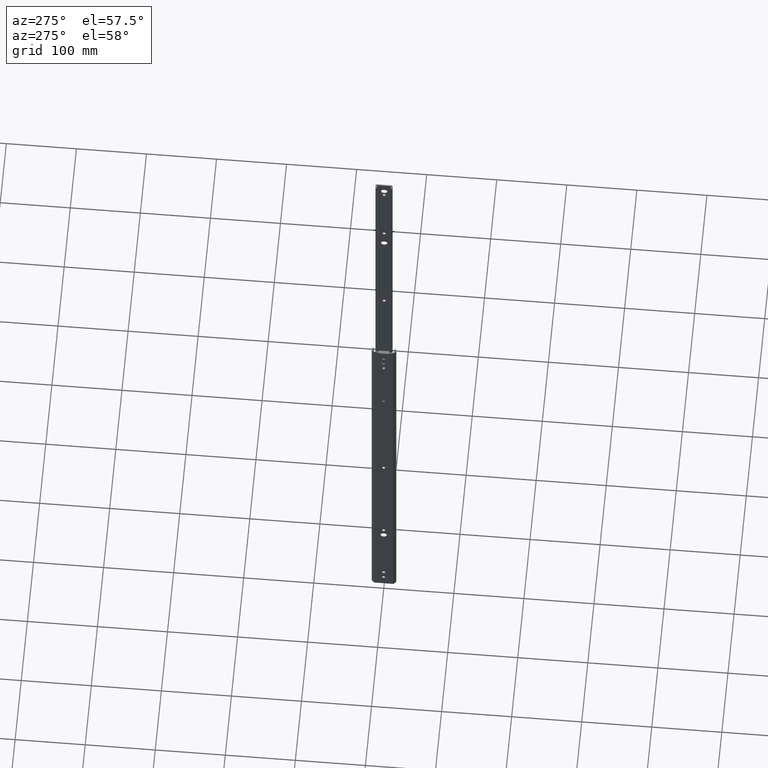
[diagram: clean part render]
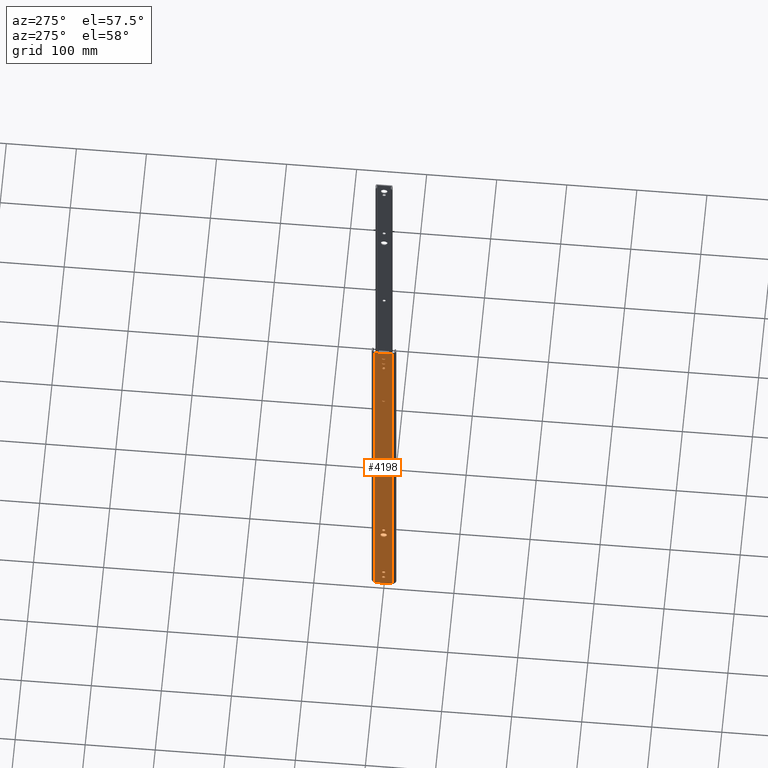
[diagram: same view with one face highlighted and labeled with its STEP entity id]
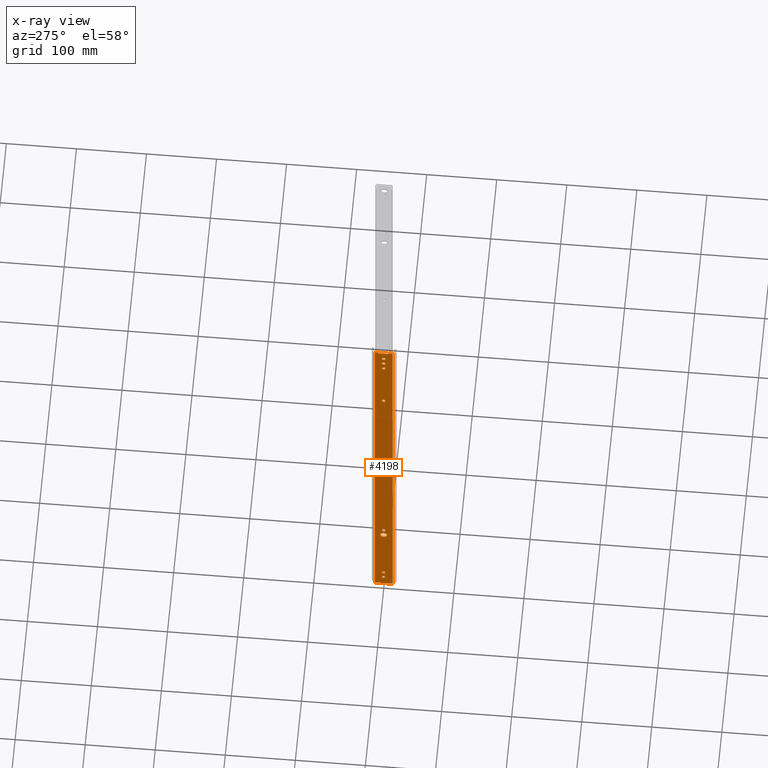
[diagram: x-ray of the same camera — body ghosted, the highlighted face saturated]
A machine part, auxiliary view. The second image highlights one B-rep face of the part: STEP entity #4198.
The next image is the same camera in x-ray: the body ghosted, the highlighted face saturated — about 0% of this face is hidden behind the body in this view.
In plain terms, the highlighted planar face has unit normal (-1, 0, 0).
Its self-contained STEP definition (entity closure, byte-faithful):
#8 = VERTEX_POINT ( 'NONE', #3231 ) ;
#23 = ORIENTED_EDGE ( 'NONE', *, *, #4954, .F. ) ;
#42 = ORIENTED_EDGE ( 'NONE', *, *, #4433, .F. ) ;
#50 = EDGE_CURVE ( 'NONE', #4816, #2017, #4170, .T. ) ;
#80 = CARTESIAN_POINT ( 'NONE',  ( -1.500000000000000000, 2.650000000000084732, -28.60000000000000497 ) ) ;
#85 = DIRECTION ( 'NONE',  ( 0.0000000000000000000, 0.0000000000000000000, 1.000000000000000000 ) ) ;
#104 = CARTESIAN_POINT ( 'NONE',  ( -1.500000000000000000, 1.174239607060081853E-14, -41.70000000000001705 ) ) ;
#121 = VECTOR ( 'NONE', #1231, 1000.000000000000000 ) ;
#141 = CARTESIAN_POINT ( 'NONE',  ( -1.500000000000000000, -0.3999999999999894196, -593.7000000000000455 ) ) ;
#150 = EDGE_CURVE ( 'NONE', #3006, #2646, #5206, .T. ) ;
#157 = ORIENTED_EDGE ( 'NONE', *, *, #1750, .F. ) ;
#167 = ORIENTED_EDGE ( 'NONE', *, *, #2512, .F. ) ;
#170 = VECTOR ( 'NONE', #1161, 1000.000000000000000 ) ;
#177 = EDGE_CURVE ( 'NONE', #2003, #2264, #4600, .T. ) ;
#179 = CARTESIAN_POINT ( 'NONE',  ( -1.500000000000000000, 0.4000000000000089040, -15.90000000000000391 ) ) ;
#182 = VERTEX_POINT ( 'NONE', #2680 ) ;
#190 = DIRECTION ( 'NONE',  ( 0.0000000000000000000, 0.0000000000000000000, 1.000000000000000000 ) ) ;
#192 = CIRCLE ( 'NONE', #1545, 2.249999999999946709 ) ;
#193 = DIRECTION ( 'NONE',  ( 0.0000000000000000000, 0.0000000000000000000, 1.000000000000000000 ) ) ;
#229 = VERTEX_POINT ( 'NONE', #1116 ) ;
#236 = EDGE_CURVE ( 'NONE', #4132, #2814, #4355, .T. ) ;
#243 = VERTEX_POINT ( 'NONE', #1963 ) ;
#262 = CARTESIAN_POINT ( 'NONE',  ( -1.500000000000199174, 12.66450793488827919, -609.5999999999999091 ) ) ;
#265 = ORIENTED_EDGE ( 'NONE', *, *, #788, .F. ) ;
#278 = DIRECTION ( 'NONE',  ( 0.0000000000000000000, 0.0000000000000000000, 1.000000000000000000 ) ) ;
#282 = VERTEX_POINT ( 'NONE', #2385 ) ;
#297 = ORIENTED_EDGE ( 'NONE', *, *, #3677, .F. ) ;
#311 = ORIENTED_EDGE ( 'NONE', *, *, #2546, .F. ) ;
#320 = CARTESIAN_POINT ( 'NONE',  ( -1.500000000000000000, 1.143208423734401982E-12, -305.2000000000000455 ) ) ;
#324 = LINE ( 'NONE', #3952, #2204 ) ;
#333 = ORIENTED_EDGE ( 'NONE', *, *, #4363, .T. ) ;
#357 = ORIENTED_EDGE ( 'NONE', *, *, #3850, .F. ) ;
#365 = FACE_BOUND ( 'NONE', #2292, .T. ) ;
#390 = VECTOR ( 'NONE', #2620, 1000.000000000000000 ) ;
#393 = CARTESIAN_POINT ( 'NONE',  ( -1.500000000000000000, -2.249999999999987121, -41.70000000000001705 ) ) ;
#412 = EDGE_LOOP ( 'NONE', ( #4785, #3654, #357, #1721 ) ) ;
#445 = AXIS2_PLACEMENT_3D ( 'NONE', #3929, #701, #2759 ) ;
#511 = CARTESIAN_POINT ( 'NONE',  ( -1.500000000000000000, 2.250000000001160405, -470.3000000000000114 ) ) ;
#515 = VERTEX_POINT ( 'NONE', #4644 ) ;
#518 = ORIENTED_EDGE ( 'NONE', *, *, #1924, .T. ) ;
#519 = CARTESIAN_POINT ( 'NONE',  ( -1.500000000000000000, 0.3999999999999238054, -581.0000000000001137 ) ) ;
#547 = VECTOR ( 'NONE', #1657, 1000.000000000000000 ) ;
#548 = CIRCLE ( 'NONE', #4805, 2.250000000000005329 ) ;
#554 = AXIS2_PLACEMENT_3D ( 'NONE', #2741, #4368, #3568 ) ;
#558 = CARTESIAN_POINT ( 'NONE',  ( -1.500000000000000000, 2.650000000000014566, -15.90000000000000391 ) ) ;
#559 = CARTESIAN_POINT ( 'NONE',  ( -1.500000000000000000, 0.4000000000003006151, -578.7500000000002274 ) ) ;
#582 = CARTESIAN_POINT ( 'NONE',  ( -1.500000000000000000, -2.250000000036248338, -127.4000000000000341 ) ) ;
#600 = VERTEX_POINT ( 'NONE', #1903 ) ;
#604 = VERTEX_POINT ( 'NONE', #4316 ) ;
#625 = AXIS2_PLACEMENT_3D ( 'NONE', #1243, #2099, #2493 ) ;
#683 = DIRECTION ( 'NONE',  ( -1.000000000000000000, 0.0000000000000000000, 0.0000000000000000000 ) ) ;
#685 = VECTOR ( 'NONE', #2384, 1000.000000000000000 ) ;
#688 = FACE_BOUND ( 'NONE', #2185, .T. ) ;
#701 = DIRECTION ( 'NONE',  ( -1.000000000000000000, 0.0000000000000000000, 0.0000000000000000000 ) ) ;
#717 = ORIENTED_EDGE ( 'NONE', *, *, #3525, .F. ) ;
#730 = CARTESIAN_POINT ( 'NONE',  ( -1.500000000000000000, -7.100000000000000986E-15, -609.5999999999999091 ) ) ;
#742 = CARTESIAN_POINT ( 'NONE',  ( -1.500000000000000000, -7.100000000000000986E-15, -609.5999999999999091 ) ) ;
#743 = EDGE_CURVE ( 'NONE', #1087, #4879, #4861, .T. ) ;
#787 = FACE_OUTER_BOUND ( 'NONE', #3620, .T. ) ;
#788 = EDGE_CURVE ( 'NONE', #3646, #8, #2981, .T. ) ;
#793 = DIRECTION ( 'NONE',  ( 0.0000000000000000000, -1.000000000000000000, 0.0000000000000000000 ) ) ;
#818 = DIRECTION ( 'NONE',  ( 0.0000000000000000000, 1.000000000000000000, 0.0000000000000000000 ) ) ;
#832 = CARTESIAN_POINT ( 'NONE',  ( -1.500000000000000000, 2.250000000036348702, -126.6000000000002075 ) ) ;
#834 = VERTEX_POINT ( 'NONE', #4324 ) ;
#835 = CARTESIAN_POINT ( 'NONE',  ( -1.500000000000000000, -12.66450793488830051, -609.5999999999999091 ) ) ;
#838 = ORIENTED_EDGE ( 'NONE', *, *, #1405, .F. ) ;
#846 = AXIS2_PLACEMENT_3D ( 'NONE', #3956, #1515, #5168 ) ;
#855 = ORIENTED_EDGE ( 'NONE', *, *, #3805, .F. ) ;
#872 = LINE ( 'NONE', #2828, #170 ) ;
#896 = CARTESIAN_POINT ( 'NONE',  ( -1.500000000000047962, -7.367677090030486653, -1.121813326174416092 ) ) ;
#957 = DIRECTION ( 'NONE',  ( -7.914797957524653599E-16, -0.1218133261744156343, -0.9925530280878323008 ) ) ;
#961 = EDGE_CURVE ( 'NONE', #4490, #5018, #3133, .T. ) ;
#975 = ORIENTED_EDGE ( 'NONE', *, *, #2664, .F. ) ;
#977 = DIRECTION ( 'NONE',  ( -1.000000000000000000, 0.0000000000000000000, 0.0000000000000000000 ) ) ;
#1001 = DIRECTION ( 'NONE',  ( 0.0000000000000000000, 0.0000000000000000000, 1.000000000000000000 ) ) ;
#1014 = CARTESIAN_POINT ( 'NONE',  ( -1.500000000000000000, -2.249999999998836042, -470.3000000000000114 ) ) ;
#1037 = VECTOR ( 'NONE', #5241, 1000.000000000000000 ) ;
#1044 = CARTESIAN_POINT ( 'NONE',  ( -1.500000000000048850, -7.499999999999990230, -2.199999999999999734 ) ) ;
#1080 = FACE_BOUND ( 'NONE', #3033, .T. ) ;
#1087 = VERTEX_POINT ( 'NONE', #2860 ) ;
#1105 = AXIS2_PLACEMENT_3D ( 'NONE', #3037, #1795, #5027 ) ;
#1116 = CARTESIAN_POINT ( 'NONE',  ( -1.500000000000000000, 2.250000000037441605, -305.2000000000000455 ) ) ;
#1132 = CARTESIAN_POINT ( 'NONE',  ( -1.500000000000000000, -2.250000000036248338, -126.6000000000002359 ) ) ;
#1133 = AXIS2_PLACEMENT_3D ( 'NONE', #141, #1350, #1374 ) ;
#1138 = LINE ( 'NONE', #2756, #5140 ) ;
#1147 = EDGE_CURVE ( 'NONE', #5070, #3066, #5218, .T. ) ;
#1153 = PLANE ( 'NONE',  #1704 ) ;
#1161 = DIRECTION ( 'NONE',  ( 0.0000000000000000000, 0.0000000000000000000, 1.000000000000000000 ) ) ;
#1177 = ORIENTED_EDGE ( 'NONE', *, *, #4138, .F. ) ;
#1180 = AXIS2_PLACEMENT_3D ( 'NONE', #4200, #2130, #3391 ) ;
#1186 = VECTOR ( 'NONE', #2037, 1000.000000000000000 ) ;
#1195 = ORIENTED_EDGE ( 'NONE', *, *, #4753, .F. ) ;
#1199 = DIRECTION ( 'NONE',  ( 0.0000000000000000000, 0.0000000000000000000, 1.000000000000000000 ) ) ;
#1210 = EDGE_CURVE ( 'NONE', #4879, #3026, #1379, .T. ) ;
#1211 = AXIS2_PLACEMENT_3D ( 'NONE', #1590, #3202, #4848 ) ;
#1226 = VERTEX_POINT ( 'NONE', #2012 ) ;
#1231 = DIRECTION ( 'NONE',  ( 0.0000000000000000000, 1.000000000000000000, 0.0000000000000000000 ) ) ;
#1243 = CARTESIAN_POINT ( 'NONE',  ( -1.500000000000000000, 1.162665457909283450E-12, -470.3000000000000114 ) ) ;
#1250 = DIRECTION ( 'NONE',  ( 0.0000000000000000000, 0.0000000000000000000, 1.000000000000000000 ) ) ;
#1287 = DIRECTION ( 'NONE',  ( 0.0000000000000000000, 0.0000000000000000000, 1.000000000000000000 ) ) ;
#1288 = ORIENTED_EDGE ( 'NONE', *, *, #4354, .F. ) ;
#1304 = EDGE_CURVE ( 'NONE', #1794, #1087, #2060, .T. ) ;
#1309 = AXIS2_PLACEMENT_3D ( 'NONE', #4926, #1690, #85 ) ;
#1311 = DIRECTION ( 'NONE',  ( 0.0000000000000000000, 0.0000000000000000000, 1.000000000000000000 ) ) ;
#1312 = CIRCLE ( 'NONE', #554, 2.249999999999863221 ) ;
#1342 = DIRECTION ( 'NONE',  ( 0.0000000000000000000, 0.0000000000000000000, 1.000000000000000000 ) ) ;
#1350 = DIRECTION ( 'NONE',  ( -1.000000000000000000, 0.0000000000000000000, 0.0000000000000000000 ) ) ;
#1370 = AXIS2_PLACEMENT_3D ( 'NONE', #2187, #3401, #1001 ) ;
#1372 = CARTESIAN_POINT ( 'NONE',  ( -1.500000000000000000, 0.4000000000000222822, -30.85000000000004405 ) ) ;
#1374 = DIRECTION ( 'NONE',  ( 0.0000000000000000000, 0.0000000000000000000, 1.000000000000000000 ) ) ;
#1375 = DIRECTION ( 'NONE',  ( 0.0000000000000000000, 0.0000000000000000000, 1.000000000000000000 ) ) ;
#1379 = CIRCLE ( 'NONE', #1211, 2.249999999999863221 ) ;
#1405 = EDGE_CURVE ( 'NONE', #5179, #604, #1138, .T. ) ;
#1406 = DIRECTION ( 'NONE',  ( 0.0000000000000000000, -1.000000000000000000, 0.0000000000000000000 ) ) ;
#1445 = CIRCLE ( 'NONE', #4592, 2.250000000036278536 ) ;
#1455 = CIRCLE ( 'NONE', #3491, 2.250000000000005329 ) ;
#1499 = DIRECTION ( 'NONE',  ( 0.0000000000000000000, 0.0000000000000000000, 1.000000000000000000 ) ) ;
#1505 = CARTESIAN_POINT ( 'NONE',  ( -1.500000000000000000, 2.250000000000010658, -609.5999999999999091 ) ) ;
#1512 = CARTESIAN_POINT ( 'NONE',  ( -1.500000000000000000, 0.4000000000003031131, -591.4500000000001592 ) ) ;
#1515 = DIRECTION ( 'NONE',  ( -1.000000000000000000, 0.0000000000000000000, 0.0000000000000000000 ) ) ;
#1526 = ORIENTED_EDGE ( 'NONE', *, *, #2446, .F. ) ;
#1544 = LINE ( 'NONE', #4797, #1186 ) ;
#1545 = AXIS2_PLACEMENT_3D ( 'NONE', #2788, #2324, #3548 ) ;
#1551 = ORIENTED_EDGE ( 'NONE', *, *, #1660, .F. ) ;
#1552 = FACE_BOUND ( 'NONE', #2180, .T. ) ;
#1562 = CARTESIAN_POINT ( 'NONE',  ( -1.500000000000000000, -7.100000000000000986E-15, -578.7500000000002274 ) ) ;
#1569 = CIRCLE ( 'NONE', #4719, 2.250000000036292302 ) ;
#1579 = FACE_BOUND ( 'NONE', #2889, .T. ) ;
#1585 = VERTEX_POINT ( 'NONE', #3601 ) ;
#1590 = CARTESIAN_POINT ( 'NONE',  ( -1.500000000000000000, 0.3999999999999259703, -593.7000000000000455 ) ) ;
#1599 = EDGE_CURVE ( 'NONE', #4225, #2954, #2409, .T. ) ;
#1651 = VERTEX_POINT ( 'NONE', #2382 ) ;
#1652 = LINE ( 'NONE', #4498, #3397 ) ;
#1657 = DIRECTION ( 'NONE',  ( 0.0000000000000000000, 1.257674520083127336E-13, 1.000000000000000000 ) ) ;
#1659 = CARTESIAN_POINT ( 'NONE',  ( -1.500000000000000000, -4.750000000006043166, -482.5999999999999091 ) ) ;
#1660 = EDGE_CURVE ( 'NONE', #2842, #3612, #2231, .T. ) ;
#1682 = LINE ( 'NONE', #4406, #685 ) ;
#1688 = CARTESIAN_POINT ( 'NONE',  ( -1.500000000000047073, -7.229999999999990656, -1.770839271567072711E-15 ) ) ;
#1690 = DIRECTION ( 'NONE',  ( -1.000000000000000000, 0.0000000000000000000, 0.0000000000000000000 ) ) ;
#1704 = AXIS2_PLACEMENT_3D ( 'NONE', #742, #2769, #3994 ) ;
#1706 = DIRECTION ( 'NONE',  ( 0.0000000000000000000, 0.0000000000000000000, 1.000000000000000000 ) ) ;
#1709 = CARTESIAN_POINT ( 'NONE',  ( -1.500000000000000000, 2.250000000037441605, -609.5999999999999091 ) ) ;
#1721 = ORIENTED_EDGE ( 'NONE', *, *, #2855, .F. ) ;
#1725 = CIRCLE ( 'NONE', #3421, 2.250000000000001776 ) ;
#1728 = AXIS2_PLACEMENT_3D ( 'NONE', #2373, #3672, #4889 ) ;
#1738 = LINE ( 'NONE', #1709, #1780 ) ;
#1750 = EDGE_CURVE ( 'NONE', #3289, #4225, #1725, .T. ) ;
#1757 = ORIENTED_EDGE ( 'NONE', *, *, #4228, .F. ) ;
#1780 = VECTOR ( 'NONE', #4974, 1000.000000000000000 ) ;
#1789 = AXIS2_PLACEMENT_3D ( 'NONE', #3388, #3151, #278 ) ;
#1794 = VERTEX_POINT ( 'NONE', #4615 ) ;
#1795 = DIRECTION ( 'NONE',  ( -1.000000000000000000, 0.0000000000000000000, 0.0000000000000000000 ) ) ;
#1806 = CIRCLE ( 'NONE', #4016, 1.000000000000000000 ) ;
#1816 = DIRECTION ( 'NONE',  ( 0.0000000000000000000, 0.0000000000000000000, 1.000000000000000000 ) ) ;
#1835 = ORIENTED_EDGE ( 'NONE', *, *, #50, .F. ) ;
#1878 = CIRCLE ( 'NONE', #2047, 4.749999999999976907 ) ;
#1903 = CARTESIAN_POINT ( 'NONE',  ( -1.500000000000000000, -12.66450793488830051, 0.0000000000000000000 ) ) ;
#1908 = CARTESIAN_POINT ( 'NONE',  ( -1.500000000000000000, -2.250000000035155434, -305.2000000000000455 ) ) ;
#1909 = DIRECTION ( 'NONE',  ( 0.0000000000000000000, 0.0000000000000000000, 1.000000000000000000 ) ) ;
#1924 = EDGE_CURVE ( 'NONE', #5018, #3006, #3888, .T. ) ;
#1926 = EDGE_CURVE ( 'NONE', #229, #3726, #3678, .T. ) ;
#1928 = DIRECTION ( 'NONE',  ( -1.000000000000000000, 0.0000000000000000000, 0.0000000000000000000 ) ) ;
#1939 = CARTESIAN_POINT ( 'NONE',  ( -1.500000000000000000, 2.250000000000010658, -41.70000000000001705 ) ) ;
#1962 = DIRECTION ( 'NONE',  ( 0.0000000000000000000, 1.000000000000000000, 0.0000000000000000000 ) ) ;
#1963 = CARTESIAN_POINT ( 'NONE',  ( -1.500000000000000000, -0.3999999999999848677, -30.85000000000000853 ) ) ;
#1973 = ORIENTED_EDGE ( 'NONE', *, *, #236, .T. ) ;
#1994 = ORIENTED_EDGE ( 'NONE', *, *, #4417, .F. ) ;
#1998 = ORIENTED_EDGE ( 'NONE', *, *, #3089, .F. ) ;
#2003 = VERTEX_POINT ( 'NONE', #4470 ) ;
#2012 = CARTESIAN_POINT ( 'NONE',  ( -1.500000000000199174, 12.66450793488827919, 0.0000000000000000000 ) ) ;
#2013 = EDGE_CURVE ( 'NONE', #834, #3413, #4104, .T. ) ;
#2017 = VERTEX_POINT ( 'NONE', #1132 ) ;
#2027 = ORIENTED_EDGE ( 'NONE', *, *, #1599, .F. ) ;
#2037 = DIRECTION ( 'NONE',  ( 0.0000000000000000000, -1.000000000000000000, 0.0000000000000000000 ) ) ;
#2047 = AXIS2_PLACEMENT_3D ( 'NONE', #3294, #2896, #1199 ) ;
#2060 = CIRCLE ( 'NONE', #1133, 2.249999999999863221 ) ;
#2082 = DIRECTION ( 'NONE',  ( 0.0000000000000000000, 0.0000000000000000000, 1.000000000000000000 ) ) ;
#2091 = ORIENTED_EDGE ( 'NONE', *, *, #4107, .F. ) ;
#2099 = DIRECTION ( 'NONE',  ( -1.000000000000000000, 0.0000000000000000000, 0.0000000000000000000 ) ) ;
#2103 = CARTESIAN_POINT ( 'NONE',  ( -1.500000000000000000, 2.649999999999789857, -593.7000000000000455 ) ) ;
#2130 = DIRECTION ( 'NONE',  ( -1.000000000000000000, 0.0000000000000000000, 0.0000000000000000000 ) ) ;
#2180 = EDGE_LOOP ( 'NONE', ( #23, #1195, #167, #1835 ) ) ;
#2185 = EDGE_LOOP ( 'NONE', ( #4582, #1288 ) ) ;
#2187 = CARTESIAN_POINT ( 'NONE',  ( -1.500000000000000000, 0.4000000000000789591, -28.60000000000000497 ) ) ;
#2204 = VECTOR ( 'NONE', #793, 1000.000000000000000 ) ;
#2213 = DIRECTION ( 'NONE',  ( 0.0000000000000000000, 0.0000000000000000000, 1.000000000000000000 ) ) ;
#2229 = VECTOR ( 'NONE', #3077, 1000.000000000000000 ) ;
#2231 = CIRCLE ( 'NONE', #5045, 2.250000000000005329 ) ;
#2264 = VERTEX_POINT ( 'NONE', #896 ) ;
#2288 = VECTOR ( 'NONE', #2728, 1000.000000000000000 ) ;
#2292 = EDGE_LOOP ( 'NONE', ( #717, #1757, #1551, #1177, #838 ) ) ;
#2309 = CARTESIAN_POINT ( 'NONE',  ( -1.500000000000000000, -0.3999999999999859224, -26.34999999999999787 ) ) ;
#2324 = DIRECTION ( 'NONE',  ( -1.000000000000000000, 0.0000000000000000000, 0.0000000000000000000 ) ) ;
#2343 = EDGE_CURVE ( 'NONE', #5224, #4830, #3055, .T. ) ;
#2345 = VERTEX_POINT ( 'NONE', #3028 ) ;
#2372 = CARTESIAN_POINT ( 'NONE',  ( -1.500000000000000000, -7.100000000000000986E-15, -30.85000000000004405 ) ) ;
#2373 = CARTESIAN_POINT ( 'NONE',  ( -1.500000000000000000, 0.4000000000000089040, -15.90000000000000391 ) ) ;
#2382 = CARTESIAN_POINT ( 'NONE',  ( -1.500000000000000000, -0.3999999999999923617, -583.2499999999998863 ) ) ;
#2384 = DIRECTION ( 'NONE',  ( 0.0000000000000000000, -1.000000000000000000, 0.0000000000000000000 ) ) ;
#2385 = CARTESIAN_POINT ( 'NONE',  ( -1.500000000000000000, 2.250000000037441605, -304.3999999999999773 ) ) ;
#2397 = VERTEX_POINT ( 'NONE', #3884 ) ;
#2398 = FACE_BOUND ( 'NONE', #4838, .T. ) ;
#2409 = LINE ( 'NONE', #4404, #547 ) ;
#2446 = EDGE_CURVE ( 'NONE', #3026, #3623, #1312, .T. ) ;
#2467 = CIRCLE ( 'NONE', #1370, 2.250000000000005329 ) ;
#2469 = VERTEX_POINT ( 'NONE', #832 ) ;
#2475 = LINE ( 'NONE', #835, #3229 ) ;
#2493 = DIRECTION ( 'NONE',  ( 0.0000000000000000000, 0.0000000000000000000, 1.000000000000000000 ) ) ;
#2512 = EDGE_CURVE ( 'NONE', #2017, #2469, #1569, .T. ) ;
#2546 = EDGE_CURVE ( 'NONE', #8, #5070, #3665, .T. ) ;
#2559 = AXIS2_PLACEMENT_3D ( 'NONE', #519, #3324, #1311 ) ;
#2581 = CIRCLE ( 'NONE', #3514, 2.250000000036306069 ) ;
#2596 = CARTESIAN_POINT ( 'NONE',  ( -1.500000000000000000, -0.3999999999999848677, -18.15000000000000924 ) ) ;
#2620 = DIRECTION ( 'NONE',  ( 0.0000000000000000000, 0.0000000000000000000, -1.000000000000000000 ) ) ;
#2624 = CARTESIAN_POINT ( 'NONE',  ( -1.500000000000000000, -7.100000000000000986E-15, -583.2499999999998863 ) ) ;
#2646 = VERTEX_POINT ( 'NONE', #3129 ) ;
#2664 = EDGE_CURVE ( 'NONE', #5173, #4727, #3150, .T. ) ;
#2680 = CARTESIAN_POINT ( 'NONE',  ( -1.500000000000000000, -2.250000000035155434, -304.3999999999999773 ) ) ;
#2681 = CARTESIAN_POINT ( 'NONE',  ( -1.500000000000000000, -0.3999999999999923617, -578.7500000000002274 ) ) ;
#2687 = CARTESIAN_POINT ( 'NONE',  ( -1.499999999999999778, 8.360230118118336051, -1.000000000000000000 ) ) ;
#2691 = LINE ( 'NONE', #1505, #3998 ) ;
#2728 = DIRECTION ( 'NONE',  ( 0.0000000000000000000, 0.0000000000000000000, 1.000000000000000000 ) ) ;
#2737 = EDGE_CURVE ( 'NONE', #4132, #1226, #4741, .T. ) ;
#2741 = CARTESIAN_POINT ( 'NONE',  ( -1.500000000000000000, 0.3999999999999259703, -593.7000000000000455 ) ) ;
#2744 = EDGE_CURVE ( 'NONE', #1651, #5173, #3297, .T. ) ;
#2747 = FACE_BOUND ( 'NONE', #4035, .T. ) ;
#2756 = CARTESIAN_POINT ( 'NONE',  ( -1.500000000000000000, -7.100000000000000986E-15, -26.34999999999998366 ) ) ;
#2759 = DIRECTION ( 'NONE',  ( 0.0000000000000000000, 0.0000000000000000000, 1.000000000000000000 ) ) ;
#2769 = DIRECTION ( 'NONE',  ( -1.000000000000000000, 0.0000000000000000000, 0.0000000000000000000 ) ) ;
#2788 = CARTESIAN_POINT ( 'NONE',  ( -1.500000000000000000, 1.119185042408541492E-13, -40.89999999999997016 ) ) ;
#2806 = ORIENTED_EDGE ( 'NONE', *, *, #2737, .F. ) ;
#2814 = VERTEX_POINT ( 'NONE', #4457 ) ;
#2826 = CARTESIAN_POINT ( 'NONE',  ( -1.500000000000000000, 0.4000000000000789591, -28.60000000000000497 ) ) ;
#2828 = CARTESIAN_POINT ( 'NONE',  ( -1.500000000000000000, -2.250000000035155434, -609.5999999999999091 ) ) ;
#2842 = VERTEX_POINT ( 'NONE', #80 ) ;
#2855 = EDGE_CURVE ( 'NONE', #3726, #182, #872, .T. ) ;
#2858 = EDGE_CURVE ( 'NONE', #1226, #5035, #1682, .T. ) ;
#2860 = CARTESIAN_POINT ( 'NONE',  ( -1.500000000000000000, -0.3999999999999901967, -591.4500000000001592 ) ) ;
#2881 = DIRECTION ( 'NONE',  ( 0.0000000000000000000, 0.0000000000000000000, -1.000000000000000000 ) ) ;
#2889 = EDGE_LOOP ( 'NONE', ( #2893, #1998, #42, #3571, #975 ) ) ;
#2893 = ORIENTED_EDGE ( 'NONE', *, *, #2744, .F. ) ;
#2896 = DIRECTION ( 'NONE',  ( -1.000000000000000000, 0.0000000000000000000, 0.0000000000000000000 ) ) ;
#2914 = VERTEX_POINT ( 'NONE', #1659 ) ;
#2921 = VERTEX_POINT ( 'NONE', #4507 ) ;
#2954 = VERTEX_POINT ( 'NONE', #3744 ) ;
#2981 = CIRCLE ( 'NONE', #5037, 2.249999999999974243 ) ;
#3006 = VERTEX_POINT ( 'NONE', #4602 ) ;
#3026 = VERTEX_POINT ( 'NONE', #2103 ) ;
#3028 = CARTESIAN_POINT ( 'NONE',  ( -1.500000000000000000, 4.749999999993907984, -482.5999999999999091 ) ) ;
#3033 = EDGE_LOOP ( 'NONE', ( #3564, #4439, #2091, #3907, #855 ) ) ;
#3037 = CARTESIAN_POINT ( 'NONE',  ( -1.500000000000000000, -0.3999999999999853673, -28.60000000000000497 ) ) ;
#3054 = EDGE_CURVE ( 'NONE', #2345, #2914, #3209, .T. ) ;
#3055 = LINE ( 'NONE', #5039, #3856 ) ;
#3066 = VERTEX_POINT ( 'NONE', #1014 ) ;
#3077 = DIRECTION ( 'NONE',  ( 6.497481191993754238E-15, 1.000000000000000000, 1.156482317317871478E-16 ) ) ;
#3084 = DIRECTION ( 'NONE',  ( 0.0000000000000000000, -1.000000000000000000, 0.0000000000000000000 ) ) ;
#3089 = EDGE_CURVE ( 'NONE', #2921, #1651, #3424, .T. ) ;
#3129 = CARTESIAN_POINT ( 'NONE',  ( -1.499999999999999778, 7.360230118118336051, -1.000000000000000000 ) ) ;
#3133 = LINE ( 'NONE', #3960, #2229 ) ;
#3150 = LINE ( 'NONE', #1562, #4235 ) ;
#3151 = DIRECTION ( 'NONE',  ( -1.000000000000000000, 0.0000000000000000000, 0.0000000000000000000 ) ) ;
#3165 = LINE ( 'NONE', #2372, #3317 ) ;
#3200 = ORIENTED_EDGE ( 'NONE', *, *, #961, .T. ) ;
#3202 = DIRECTION ( 'NONE',  ( -1.000000000000000000, 0.0000000000000000000, 0.0000000000000000000 ) ) ;
#3209 = CIRCLE ( 'NONE', #1180, 4.749999999999976907 ) ;
#3229 = VECTOR ( 'NONE', #1250, 1000.000000000000000 ) ;
#3231 = CARTESIAN_POINT ( 'NONE',  ( -1.500000000000000000, 2.250000000001160405, -469.5000000000001137 ) ) ;
#3267 = EDGE_CURVE ( 'NONE', #3623, #1794, #1544, .T. ) ;
#3269 = CARTESIAN_POINT ( 'NONE',  ( -1.500000000000000000, -7.100000000000000986E-15, -591.4500000000001592 ) ) ;
#3283 = CARTESIAN_POINT ( 'NONE',  ( -1.500000000000000000, 2.250000000036348702, -609.5999999999999091 ) ) ;
#3287 = CARTESIAN_POINT ( 'NONE',  ( -1.500000000000000000, 8.360230118118337828, 0.0000000000000000000 ) ) ;
#3289 = VERTEX_POINT ( 'NONE', #1939 ) ;
#3294 = CARTESIAN_POINT ( 'NONE',  ( -1.500000000000000000, -6.066828730901262778E-12, -482.5999999999999091 ) ) ;
#3297 = CIRCLE ( 'NONE', #846, 2.249999999999863221 ) ;
#3301 = DIRECTION ( 'NONE',  ( -1.000000000000000000, 0.0000000000000000000, 0.0000000000000000000 ) ) ;
#3317 = VECTOR ( 'NONE', #3526, 1000.000000000000000 ) ;
#3324 = DIRECTION ( 'NONE',  ( -1.000000000000000000, 0.0000000000000000000, 0.0000000000000000000 ) ) ;
#3329 = ORIENTED_EDGE ( 'NONE', *, *, #743, .F. ) ;
#3388 = CARTESIAN_POINT ( 'NONE',  ( -1.499999999999999778, 8.360230118118336051, -1.000000000000000000 ) ) ;
#3391 = DIRECTION ( 'NONE',  ( 0.0000000000000000000, 0.0000000000000000000, 1.000000000000000000 ) ) ;
#3397 = VECTOR ( 'NONE', #2082, 1000.000000000000000 ) ;
#3401 = DIRECTION ( 'NONE',  ( -1.000000000000000000, 0.0000000000000000000, 0.0000000000000000000 ) ) ;
#3413 = VERTEX_POINT ( 'NONE', #558 ) ;
#3421 = AXIS2_PLACEMENT_3D ( 'NONE', #104, #3301, #1287 ) ;
#3424 = LINE ( 'NONE', #2624, #4581 ) ;
#3445 = EDGE_CURVE ( 'NONE', #2264, #4490, #4981, .T. ) ;
#3448 = CARTESIAN_POINT ( 'NONE',  ( -1.500000000000000000, 2.250000000001160405, -609.5999999999999091 ) ) ;
#3491 = AXIS2_PLACEMENT_3D ( 'NONE', #179, #977, #1816 ) ;
#3504 = CARTESIAN_POINT ( 'NONE',  ( -1.500000000000199174, 12.66450793488827919, -609.5999999999999091 ) ) ;
#3514 = AXIS2_PLACEMENT_3D ( 'NONE', #4322, #3925, #1909 ) ;
#3525 = EDGE_CURVE ( 'NONE', #243, #5179, #5015, .T. ) ;
#3526 = DIRECTION ( 'NONE',  ( 0.0000000000000000000, -1.000000000000000000, 0.0000000000000000000 ) ) ;
#3527 = DIRECTION ( 'NONE',  ( -7.914797957524653599E-16, -0.1218133261744156343, 0.9925530280878323008 ) ) ;
#3548 = DIRECTION ( 'NONE',  ( 0.0000000000000000000, 0.0000000000000000000, 1.000000000000000000 ) ) ;
#3564 = ORIENTED_EDGE ( 'NONE', *, *, #4833, .F. ) ;
#3568 = DIRECTION ( 'NONE',  ( 0.0000000000000000000, 0.0000000000000000000, 1.000000000000000000 ) ) ;
#3571 = ORIENTED_EDGE ( 'NONE', *, *, #4759, .F. ) ;
#3586 = ORIENTED_EDGE ( 'NONE', *, *, #1147, .F. ) ;
#3601 = CARTESIAN_POINT ( 'NONE',  ( -1.500000000000000000, 2.649999999999787192, -581.0000000000001137 ) ) ;
#3612 = VERTEX_POINT ( 'NONE', #1372 ) ;
#3620 = EDGE_LOOP ( 'NONE', ( #297, #3913, #4774, #3200, #518, #4285, #4674, #3951, #2806, #1973, #333 ) ) ;
#3623 = VERTEX_POINT ( 'NONE', #5055 ) ;
#3646 = VERTEX_POINT ( 'NONE', #4215 ) ;
#3654 = ORIENTED_EDGE ( 'NONE', *, *, #3968, .F. ) ;
#3656 = VECTOR ( 'NONE', #1375, 1000.000000000000000 ) ;
#3665 = LINE ( 'NONE', #3448, #390 ) ;
#3672 = DIRECTION ( 'NONE',  ( -1.000000000000000000, 0.0000000000000000000, 0.0000000000000000000 ) ) ;
#3677 = EDGE_CURVE ( 'NONE', #2003, #600, #324, .T. ) ;
#3678 = CIRCLE ( 'NONE', #3765, 2.250000000036278536 ) ;
#3719 = CARTESIAN_POINT ( 'NONE',  ( -1.500000000000000000, 1.159543845470313509E-14, -126.5999999999999943 ) ) ;
#3724 = DIRECTION ( 'NONE',  ( -1.000000000000000000, 0.0000000000000000000, 0.0000000000000000000 ) ) ;
#3726 = VERTEX_POINT ( 'NONE', #1908 ) ;
#3744 = CARTESIAN_POINT ( 'NONE',  ( -1.500000000000000000, -2.249999999999886757, -40.89999999999997726 ) ) ;
#3765 = AXIS2_PLACEMENT_3D ( 'NONE', #320, #1928, #2213 ) ;
#3774 = ORIENTED_EDGE ( 'NONE', *, *, #1304, .F. ) ;
#3805 = EDGE_CURVE ( 'NONE', #515, #834, #4994, .T. ) ;
#3833 = ORIENTED_EDGE ( 'NONE', *, *, #4187, .F. ) ;
#3850 = EDGE_CURVE ( 'NONE', #182, #282, #1445, .T. ) ;
#3856 = VECTOR ( 'NONE', #3084, 1000.000000000000000 ) ;
#3884 = CARTESIAN_POINT ( 'NONE',  ( -1.500000000000000000, 2.250000000036348702, -127.4000000000000341 ) ) ;
#3888 = LINE ( 'NONE', #4234, #4534 ) ;
#3900 = CARTESIAN_POINT ( 'NONE',  ( -1.500000000000000000, 0.4000000000000221712, -18.14999999999999858 ) ) ;
#3907 = ORIENTED_EDGE ( 'NONE', *, *, #2013, .F. ) ;
#3913 = ORIENTED_EDGE ( 'NONE', *, *, #177, .T. ) ;
#3925 = DIRECTION ( 'NONE',  ( -1.000000000000000000, 0.0000000000000000000, 0.0000000000000000000 ) ) ;
#3929 = CARTESIAN_POINT ( 'NONE',  ( -1.500000000000000000, -8.360230118118318288, -1.000000000000000000 ) ) ;
#3951 = ORIENTED_EDGE ( 'NONE', *, *, #2858, .F. ) ;
#3952 = CARTESIAN_POINT ( 'NONE',  ( -1.500000000000000000, -7.100000000000000986E-15, 0.0000000000000000000 ) ) ;
#3956 = CARTESIAN_POINT ( 'NONE',  ( -1.500000000000000000, -0.3999999999999915845, -581.0000000000001137 ) ) ;
#3960 = CARTESIAN_POINT ( 'NONE',  ( -1.499999999999951150, 7.500000000000008882, -2.199999999999997957 ) ) ;
#3968 = EDGE_CURVE ( 'NONE', #282, #229, #1738, .T. ) ;
#3991 = VECTOR ( 'NONE', #818, 1000.000000000000000 ) ;
#3994 = DIRECTION ( 'NONE',  ( 0.0000000000000000000, 0.0000000000000000000, 1.000000000000000000 ) ) ;
#3998 = VECTOR ( 'NONE', #4343, 1000.000000000000000 ) ;
#4001 = DIRECTION ( 'NONE',  ( -1.000000000000000000, 0.0000000000000000000, 0.0000000000000000000 ) ) ;
#4003 = CIRCLE ( 'NONE', #2559, 2.249999999999863221 ) ;
#4016 = AXIS2_PLACEMENT_3D ( 'NONE', #2687, #683, #1499 ) ;
#4035 = EDGE_LOOP ( 'NONE', ( #3586, #311, #265, #1994 ) ) ;
#4104 = CIRCLE ( 'NONE', #1728, 2.250000000000005329 ) ;
#4106 = DIRECTION ( 'NONE',  ( -1.000000000000000000, 0.0000000000000000000, 0.0000000000000000000 ) ) ;
#4107 = EDGE_CURVE ( 'NONE', #3413, #5224, #1455, .T. ) ;
#4129 = CARTESIAN_POINT ( 'NONE',  ( -1.500000000000000000, 1.162518500293385697E-12, -469.5000000000000568 ) ) ;
#4132 = VERTEX_POINT ( 'NONE', #262 ) ;
#4138 = EDGE_CURVE ( 'NONE', #604, #2842, #2467, .T. ) ;
#4170 = LINE ( 'NONE', #4652, #3656 ) ;
#4181 = EDGE_LOOP ( 'NONE', ( #157, #4207, #3833, #2027 ) ) ;
#4187 = EDGE_CURVE ( 'NONE', #2954, #5185, #192, .T. ) ;
#4198 = ADVANCED_FACE ( 'NONE', ( #1080, #4421, #688, #2398, #1579, #2747, #1552, #5180, #365, #787 ), #1153, .T. ) ;
#4200 = CARTESIAN_POINT ( 'NONE',  ( -1.500000000000000000, -6.066828730901262778E-12, -482.5999999999999091 ) ) ;
#4207 = ORIENTED_EDGE ( 'NONE', *, *, #4291, .F. ) ;
#4215 = CARTESIAN_POINT ( 'NONE',  ( -1.500000000000000000, -2.249999999998836042, -469.5000000000000568 ) ) ;
#4221 = CARTESIAN_POINT ( 'NONE',  ( -1.499999999999951150, 7.500000000000008882, -2.199999999999997957 ) ) ;
#4225 = VERTEX_POINT ( 'NONE', #393 ) ;
#4228 = EDGE_CURVE ( 'NONE', #3612, #243, #3165, .T. ) ;
#4234 = CARTESIAN_POINT ( 'NONE',  ( -1.499999999999952927, 7.230000000000010196, 0.0000000000000000000 ) ) ;
#4235 = VECTOR ( 'NONE', #1962, 1000.000000000000000 ) ;
#4269 = CARTESIAN_POINT ( 'NONE',  ( -1.500000000000000000, -0.3999999999999853673, -15.90000000000000391 ) ) ;
#4270 = DIRECTION ( 'NONE',  ( 0.0000000000000000000, 1.000000000000000000, 0.0000000000000000000 ) ) ;
#4278 = CIRCLE ( 'NONE', #1309, 2.249999999999863221 ) ;
#4285 = ORIENTED_EDGE ( 'NONE', *, *, #150, .T. ) ;
#4291 = EDGE_CURVE ( 'NONE', #5185, #3289, #2691, .T. ) ;
#4316 = CARTESIAN_POINT ( 'NONE',  ( -1.500000000000000000, 0.4000000000000075162, -26.34999999999999787 ) ) ;
#4322 = CARTESIAN_POINT ( 'NONE',  ( -1.500000000000000000, 3.237824004933464225E-13, -127.4000000000000341 ) ) ;
#4324 = CARTESIAN_POINT ( 'NONE',  ( -1.500000000000000000, 0.4000000000000075162, -13.64999999999999858 ) ) ;
#4343 = DIRECTION ( 'NONE',  ( 0.0000000000000000000, 0.0000000000000000000, -1.000000000000000000 ) ) ;
#4354 = EDGE_CURVE ( 'NONE', #2914, #2345, #1878, .T. ) ;
#4355 = LINE ( 'NONE', #730, #1037 ) ;
#4363 = EDGE_CURVE ( 'NONE', #2814, #600, #2475, .T. ) ;
#4368 = DIRECTION ( 'NONE',  ( -1.000000000000000000, 0.0000000000000000000, 0.0000000000000000000 ) ) ;
#4404 = CARTESIAN_POINT ( 'NONE',  ( -1.500000000000000000, -2.250000000071410433, -609.5999999999995680 ) ) ;
#4406 = CARTESIAN_POINT ( 'NONE',  ( -1.500000000000000000, -7.100000000000000986E-15, 0.0000000000000000000 ) ) ;
#4417 = EDGE_CURVE ( 'NONE', #3066, #3646, #1652, .T. ) ;
#4421 = FACE_BOUND ( 'NONE', #412, .T. ) ;
#4433 = EDGE_CURVE ( 'NONE', #1585, #2921, #4003, .T. ) ;
#4439 = ORIENTED_EDGE ( 'NONE', *, *, #2343, .F. ) ;
#4455 = DIRECTION ( 'NONE',  ( 0.0000000000000000000, 0.0000000000000000000, 1.000000000000000000 ) ) ;
#4457 = CARTESIAN_POINT ( 'NONE',  ( -1.500000000000000000, -12.66450793488830051, -609.5999999999999091 ) ) ;
#4470 = CARTESIAN_POINT ( 'NONE',  ( -1.500000000000000000, -8.360230118118318288, 0.0000000000000000000 ) ) ;
#4490 = VERTEX_POINT ( 'NONE', #1044 ) ;
#4498 = CARTESIAN_POINT ( 'NONE',  ( -1.500000000000000000, -2.249999999998836042, -609.5999999999999091 ) ) ;
#4507 = CARTESIAN_POINT ( 'NONE',  ( -1.500000000000000000, 0.4000000000003128275, -583.2499999999998863 ) ) ;
#4512 = LINE ( 'NONE', #3283, #4801 ) ;
#4534 = VECTOR ( 'NONE', #3527, 1000.000000000000227 ) ;
#4565 = CARTESIAN_POINT ( 'NONE',  ( -1.500000000000000000, -7.100000000000000986E-15, -13.65000000000005187 ) ) ;
#4581 = VECTOR ( 'NONE', #1406, 1000.000000000000000 ) ;
#4582 = ORIENTED_EDGE ( 'NONE', *, *, #3054, .F. ) ;
#4592 = AXIS2_PLACEMENT_3D ( 'NONE', #4916, #4106, #1342 ) ;
#4600 = CIRCLE ( 'NONE', #445, 1.000000000000000000 ) ;
#4602 = CARTESIAN_POINT ( 'NONE',  ( -1.499999999999952038, 7.367677090030506193, -1.121813326174415426 ) ) ;
#4615 = CARTESIAN_POINT ( 'NONE',  ( -1.500000000000000000, -0.3999999999999901967, -595.9499999999998181 ) ) ;
#4644 = CARTESIAN_POINT ( 'NONE',  ( -1.500000000000000000, -0.3999999999999859224, -13.64999999999999858 ) ) ;
#4652 = CARTESIAN_POINT ( 'NONE',  ( -1.500000000000000000, -2.250000000036248338, -609.5999999999999091 ) ) ;
#4657 = EDGE_CURVE ( 'NONE', #2646, #5035, #1806, .T. ) ;
#4672 = VECTOR ( 'NONE', #957, 1000.000000000000227 ) ;
#4674 = ORIENTED_EDGE ( 'NONE', *, *, #4657, .T. ) ;
#4719 = AXIS2_PLACEMENT_3D ( 'NONE', #3719, #4961, #193 ) ;
#4727 = VERTEX_POINT ( 'NONE', #559 ) ;
#4741 = LINE ( 'NONE', #3504, #2288 ) ;
#4743 = CARTESIAN_POINT ( 'NONE',  ( -1.500000000000000000, 2.250000000000010658, -40.90000000000004832 ) ) ;
#4753 = EDGE_CURVE ( 'NONE', #2469, #2397, #4512, .T. ) ;
#4759 = EDGE_CURVE ( 'NONE', #4727, #1585, #4278, .T. ) ;
#4774 = ORIENTED_EDGE ( 'NONE', *, *, #3445, .T. ) ;
#4785 = ORIENTED_EDGE ( 'NONE', *, *, #1926, .F. ) ;
#4797 = CARTESIAN_POINT ( 'NONE',  ( -1.500000000000000000, -7.100000000000000986E-15, -595.9499999999998181 ) ) ;
#4801 = VECTOR ( 'NONE', #2881, 1000.000000000000000 ) ;
#4805 = AXIS2_PLACEMENT_3D ( 'NONE', #4269, #5136, #190 ) ;
#4816 = VERTEX_POINT ( 'NONE', #582 ) ;
#4830 = VERTEX_POINT ( 'NONE', #2596 ) ;
#4833 = EDGE_CURVE ( 'NONE', #4830, #515, #548, .T. ) ;
#4838 = EDGE_LOOP ( 'NONE', ( #3774, #4851, #1526, #5117, #3329 ) ) ;
#4848 = DIRECTION ( 'NONE',  ( 0.0000000000000000000, 0.0000000000000000000, 1.000000000000000000 ) ) ;
#4851 = ORIENTED_EDGE ( 'NONE', *, *, #3267, .F. ) ;
#4861 = LINE ( 'NONE', #3269, #121 ) ;
#4879 = VERTEX_POINT ( 'NONE', #1512 ) ;
#4889 = DIRECTION ( 'NONE',  ( 0.0000000000000000000, 0.0000000000000000000, 1.000000000000000000 ) ) ;
#4916 = CARTESIAN_POINT ( 'NONE',  ( -1.500000000000000000, 1.143061466118504028E-12, -304.3999999999999773 ) ) ;
#4926 = CARTESIAN_POINT ( 'NONE',  ( -1.500000000000000000, 0.3999999999999238054, -581.0000000000001137 ) ) ;
#4954 = EDGE_CURVE ( 'NONE', #2397, #4816, #2581, .T. ) ;
#4961 = DIRECTION ( 'NONE',  ( -1.000000000000000000, 0.0000000000000000000, 0.0000000000000000000 ) ) ;
#4974 = DIRECTION ( 'NONE',  ( 0.0000000000000000000, 0.0000000000000000000, -1.000000000000000000 ) ) ;
#4981 = LINE ( 'NONE', #1688, #4672 ) ;
#4994 = LINE ( 'NONE', #4565, #3991 ) ;
#5015 = CIRCLE ( 'NONE', #1105, 2.250000000000005329 ) ;
#5018 = VERTEX_POINT ( 'NONE', #4221 ) ;
#5027 = DIRECTION ( 'NONE',  ( 0.0000000000000000000, 0.0000000000000000000, 1.000000000000000000 ) ) ;
#5035 = VERTEX_POINT ( 'NONE', #3287 ) ;
#5037 = AXIS2_PLACEMENT_3D ( 'NONE', #4129, #3724, #1706 ) ;
#5039 = CARTESIAN_POINT ( 'NONE',  ( -1.500000000000000000, -7.100000000000000986E-15, -18.14999999999999858 ) ) ;
#5045 = AXIS2_PLACEMENT_3D ( 'NONE', #2826, #4001, #4455 ) ;
#5055 = CARTESIAN_POINT ( 'NONE',  ( -1.500000000000000000, 0.4000000000003169909, -595.9499999999998181 ) ) ;
#5070 = VERTEX_POINT ( 'NONE', #511 ) ;
#5117 = ORIENTED_EDGE ( 'NONE', *, *, #1210, .F. ) ;
#5136 = DIRECTION ( 'NONE',  ( -1.000000000000000000, 0.0000000000000000000, 0.0000000000000000000 ) ) ;
#5140 = VECTOR ( 'NONE', #4270, 1000.000000000000000 ) ;
#5168 = DIRECTION ( 'NONE',  ( 0.0000000000000000000, 0.0000000000000000000, 1.000000000000000000 ) ) ;
#5173 = VERTEX_POINT ( 'NONE', #2681 ) ;
#5179 = VERTEX_POINT ( 'NONE', #2309 ) ;
#5180 = FACE_BOUND ( 'NONE', #4181, .T. ) ;
#5185 = VERTEX_POINT ( 'NONE', #4743 ) ;
#5206 = CIRCLE ( 'NONE', #1789, 1.000000000000000000 ) ;
#5218 = CIRCLE ( 'NONE', #625, 2.249999999999974243 ) ;
#5224 = VERTEX_POINT ( 'NONE', #3900 ) ;
#5241 = DIRECTION ( 'NONE',  ( 1.571790391634308081E-14, -1.000000000000000000, -0.0000000000000000000 ) ) ;